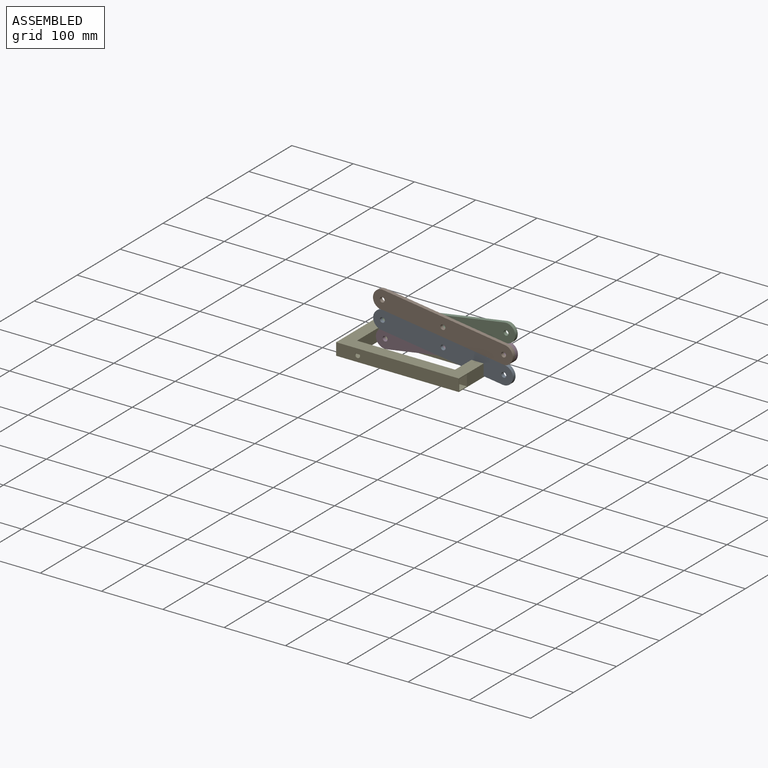
[diagram: assembled view]
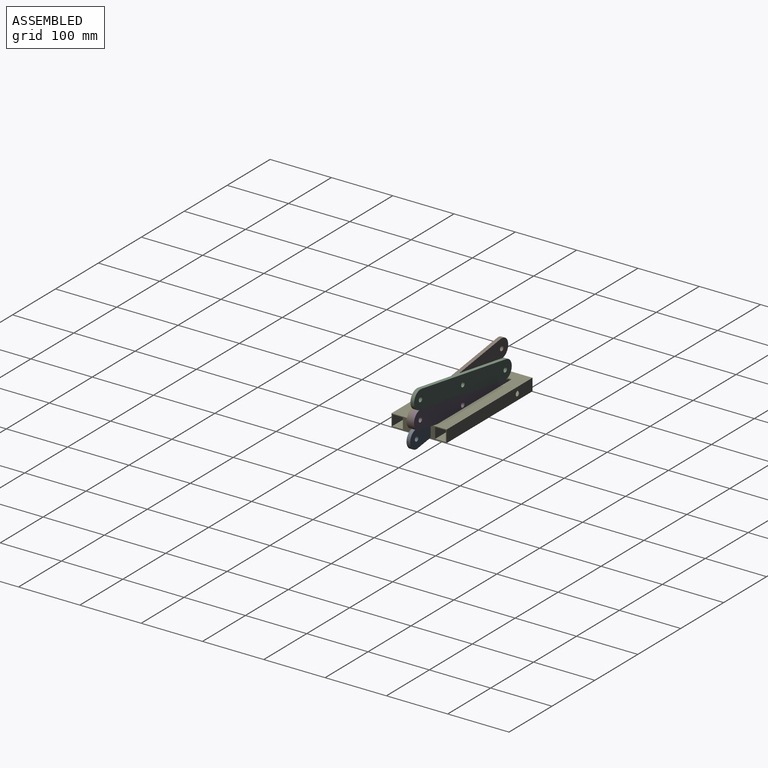
[diagram: assembled view, second angle]
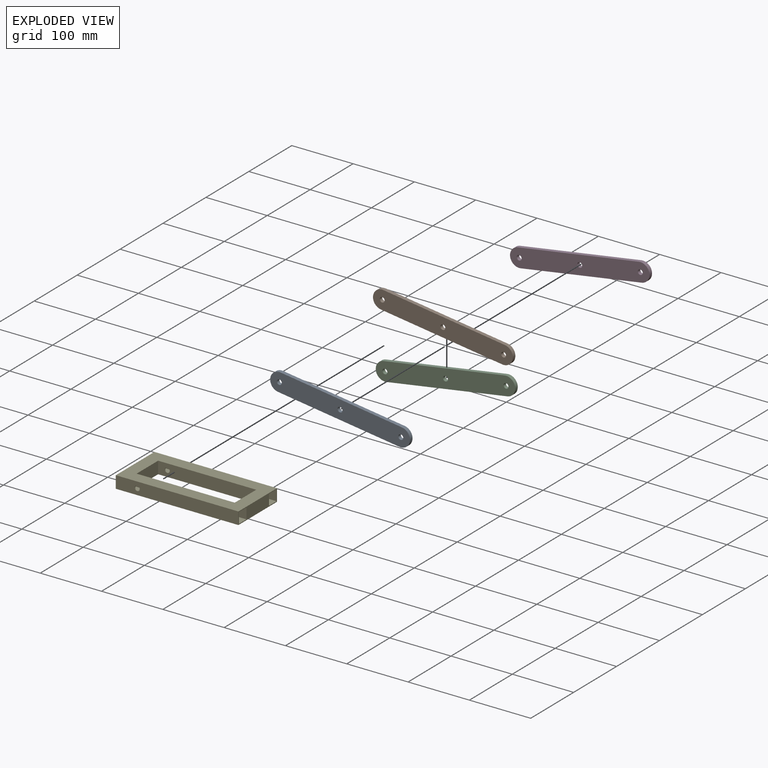
[diagram: exploded view]
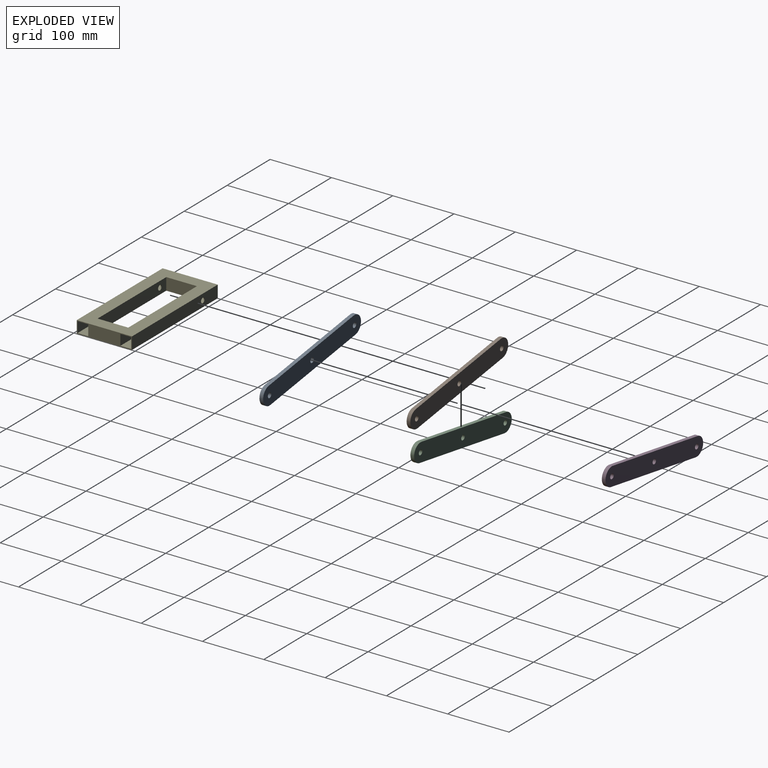
[diagram: exploded view, second angle]
ASSEMBLY  parts=5 mates=5
PART A: 9 faces, bbox 30x6x230 mm
  f0: cylinder r=15mm len=30mm, axis (0,1,0), area 282.7mm2, adj f1,f5,f7,f8
  f1: plane 200x6mm, normal (-1,0,0), area 1200mm2, adj f0,f2,f7,f8
  f2: cylinder r=15mm len=30mm, axis (0,1,0), area 282.7mm2, adj f1,f5,f7,f8
  f3: cylinder r=4mm len=8mm, axis (0,1,0), area 150.8mm2, adj f7,f8
  f4: cylinder r=4mm len=8mm, axis (0,1,0), area 150.8mm2, adj f7,f8
  f5: plane 200x6mm, normal (1,0,0), area 1200mm2, adj f0,f2,f7,f8
  f6: cylinder r=4mm len=8mm, axis (0,1,0), area 150.8mm2, adj f7,f8
  f7: plane 230x30mm, normal (0,-1,0), area 6556.1mm2, adj f0,f1,f2,f3,f4,f5,f6
  f8: plane 230x30mm, normal (0,1,0), area 6556.1mm2, adj f0,f1,f2,f3,f4,f5,f6
PART B: same geometry as A
PART C: same geometry as A
PART D: same geometry as A
PART E: 34 faces, bbox 200x90x20 mm
  f0: plane 160x20mm, normal (0,-1,0), area 3149.7mm2, adj f4,f6,f10,f11,f13
  f1: plane 200x17.5mm, normal (0,1,0), area 3449.7mm2, adj f2,f7,f8,f9,f13
  f2: plane 200x17.5mm, normal (0,0,-1), area 3500mm2, adj f1,f3,f8,f9
  f3: plane 200x17.5mm, normal (0,-1,0), area 3449.7mm2, adj f2,f7,f8,f9,f12
  f4: plane 200x90mm, normal (0,0,-1), area 10000mm2, adj f0,f5,f8,f9,f10,f11,f17,f21
  f5: plane 200x20mm, normal (0,1,0), area 3949.7mm2, adj f4,f6,f8,f9,f12
  f6: plane 200x90mm, normal (0,0,1), area 10000mm2, adj f0,f5,f8,f9,f10,f11,f17,f21
  f7: plane 200x17.5mm, normal (0,0,1), area 3500mm2, adj f1,f3,f8,f9
  f8: plane 90x20mm, normal (1,0,0), area 1187.5mm2, adj f1,f2,f3,f4,f5,f6,f7,f16
  f9: plane 90x20mm, normal (-1,0,0), area 1187.5mm2, adj f1,f2,f3,f4,f5,f6,f7,f16
  f10: plane 50x20mm, normal (1,0,0), area 1000mm2, adj f0,f4,f6,f21
  f11: plane 50x20mm, normal (-1,0,0), area 1000mm2, adj f0,f4,f6,f21
  f12: cylinder r=4mm len=8mm, axis (0,-1,0), area 31.4mm2, adj f3,f5
  f13: cylinder r=4mm len=8mm, axis (0,-1,0), area 31.4mm2, adj f0,f1
  f14: cylinder r=4mm len=8mm, axis (0,1,0), area 31.4mm2, adj f20,f21
  f15: cylinder r=4mm len=8mm, axis (0,1,0), area 31.4mm2, adj f17,f18
  f16: plane 200x17.5mm, normal (0,0,1), area 3500mm2, adj f8,f9,f18,f20
  f17: plane 200x20mm, normal (0,-1,0), area 3949.7mm2, adj f4,f6,f8,f9,f15
  f18: plane 200x17.5mm, normal (0,1,0), area 3449.7mm2, adj f8,f9,f15,f16,f19
  f19: plane 200x17.5mm, normal (0,0,-1), area 3500mm2, adj f8,f9,f18,f20
  f20: plane 200x17.5mm, normal (0,-1,0), area 3449.7mm2, adj f8,f9,f14,f16,f19
  f21: plane 160x20mm, normal (0,1,0), area 3149.7mm2, adj f4,f6,f10,f11,f14
  f22: plane 17.5x17.5mm, normal (0,-1,0), area 306.2mm2, adj f23,f24,f25,f26
  f23: plane 50x17.5mm, normal (0,0,1), area 875mm2, adj f22,f24,f26,f27
  f24: plane 50x17.5mm, normal (-1,0,0), area 875mm2, adj f22,f23,f25,f27
  f25: plane 50x17.5mm, normal (0,0,-1), area 875mm2, adj f22,f24,f26,f27
  f26: plane 50x17.5mm, normal (1,0,0), area 875mm2, adj f22,f23,f25,f27
  f27: plane 17.5x17.5mm, normal (0,1,0), area 306.2mm2, adj f23,f24,f25,f26
  f28: plane 17.5x17.5mm, normal (0,1,0), area 306.3mm2, adj f30,f31,f32,f33
  f29: plane 17.5x17.5mm, normal (0,-1,0), area 306.3mm2, adj f30,f31,f32,f33
  f30: plane 50x17.5mm, normal (1,0,0), area 875mm2, adj f28,f29,f31,f33
  f31: plane 50x17.5mm, normal (0,0,1), area 875mm2, adj f28,f29,f30,f32
  f32: plane 50x17.5mm, normal (-1,0,0), area 875mm2, adj f28,f29,f31,f33
  f33: plane 50x17.5mm, normal (0,0,-1), area 875mm2, adj f28,f29,f30,f32
PLACE A rot(axis=(0,-1,0),82deg) t=(331.24,152.56,5.64)mm
PLACE B rot(axis=(0,-1,0),82deg) t=(330.97,152.56,35.42)mm
PLACE C rot(axis=(0,1,0),80.9deg) t=(132.94,158.56,63.28)mm
PLACE D rot(axis=(0.65,0,0.76),180deg) t=(137.95,152.56,3.88)mm
PLACE E t=(100.58,158.56,8.69)mm fixed
MATE revolute B.f6 <-> C.f6  axis (0,1,0) through (234.06,152.56,64.26)mm
MATE revolute C.f3 <-> A.f0  axis (0,-1,0) through (135.31,152.56,48.47)mm
MATE revolute B.f2 <-> D.f0  axis (0,1,0) through (333.07,152.56,50.27)mm
MATE revolute D.f2 <-> E.f12  axis (0,1,0) through (135.58,158.56,18.69)mm
MATE revolute A.f6 <-> D.f6  axis (0,1,0) through (234.33,152.56,34.48)mm
